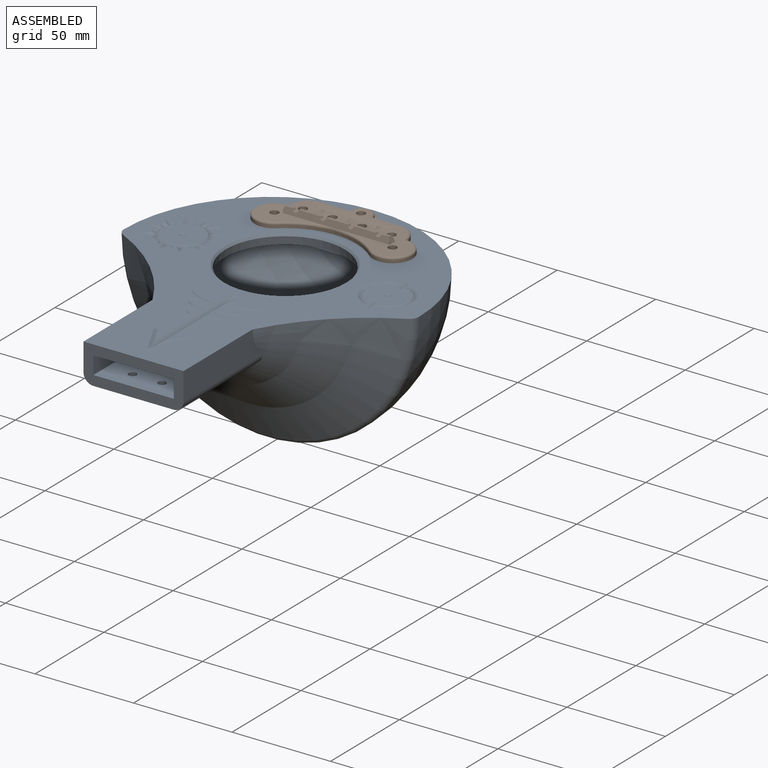
[diagram: assembled view]
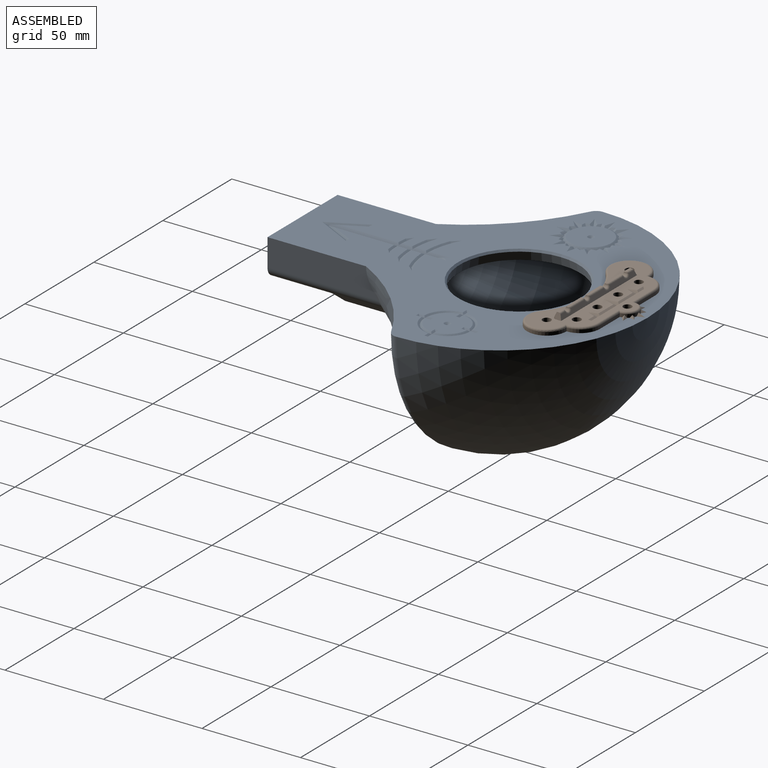
[diagram: assembled view, second angle]
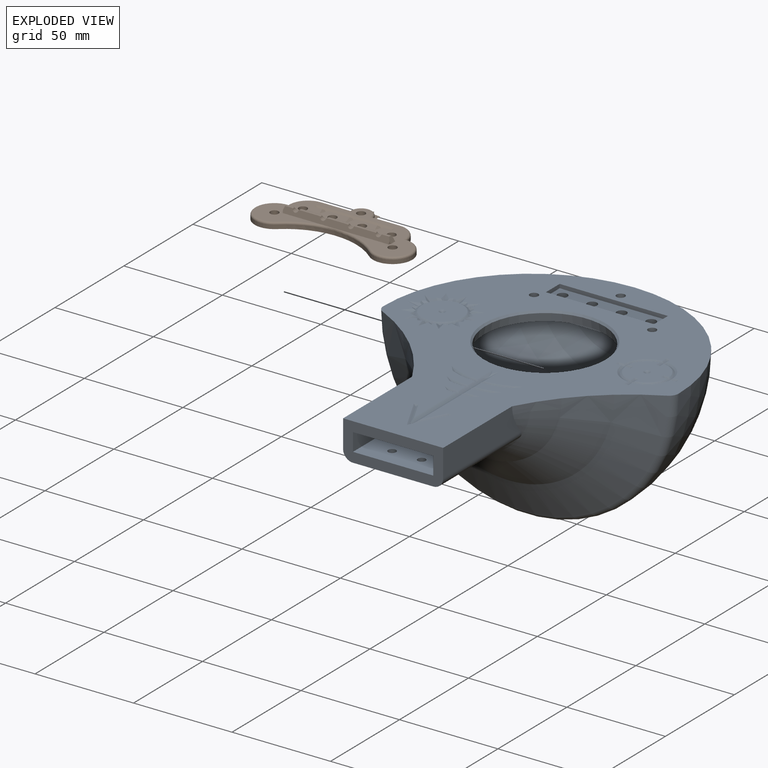
[diagram: exploded view]
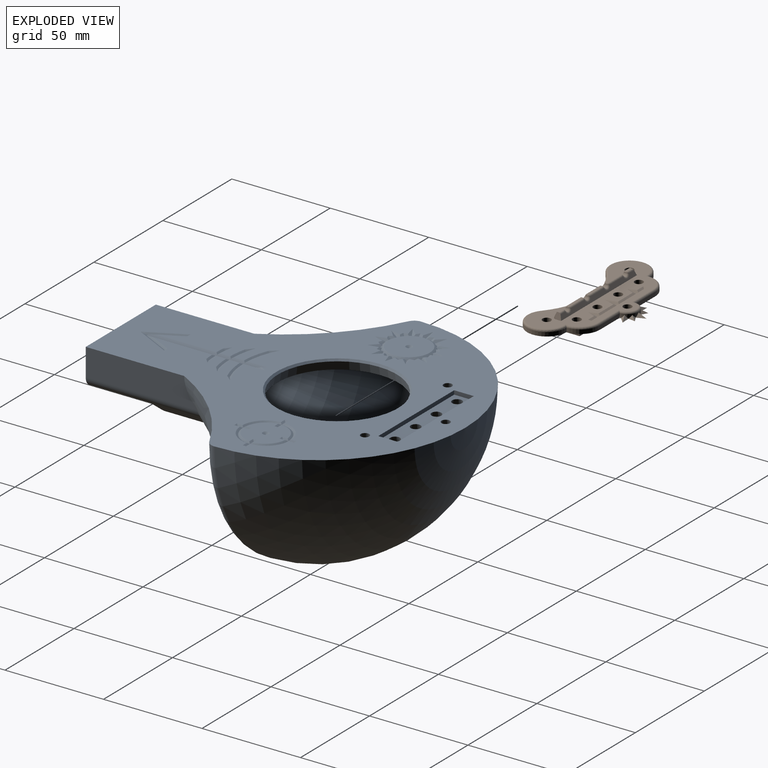
[diagram: exploded view, second angle]
ASSEMBLY  parts=2 mates=3
PART A: 268 faces, bbox 261.5x176.5x131 mm
  f0: plane 16.04x6.18mm, normal (0,-0.71,0.71), area 103.3mm2, adj f1,f40,f260,f261
  f1: plane 43.5x40.8mm, normal (0,0,1), area 1219mm2, adj f0,f47,f48,f49,f253,f254,f255,f258
  f2: plane 50x40.8mm, normal (0,0,-1), area 2002.3mm2, adj f39,f42,f44,f47,f253,f254,f255
  f3: plane 175x150mm, normal (0,0,-1), area 10922.3mm2, adj f38,f40,f41,f45,f46,f47,f51,f52
  f4: cone r=2.12mm half-angle=10deg, axis (0,0,1), area 52.5mm2, adj f26,f27,f28,f29,f30,f31,f75,f76
  f5: cone r=2.12mm half-angle=10deg, axis (0,0,1), area 52.5mm2, adj f20,f21,f22,f23,f24,f25,f81,f82
  f6: cone r=2.12mm half-angle=10deg, axis (0,0,1), area 52.5mm2, adj f14,f15,f16,f17,f18,f19,f87,f88
  f7: cone r=2.12mm half-angle=10deg, axis (0,0,1), area 52.5mm2, adj f8,f9,f10,f11,f12,f13,f93,f94
  f8: plane 1.44x0.83mm, normal (0,0,1), area 0.3mm2, adj f7,f123,f132
  f9: plane 1.66x0.48mm, normal (0,0,1), area 0.3mm2, adj f7,f127,f132
  f10: plane 1.44x0.83mm, normal (0,0,1), area 0.3mm2, adj f7,f126,f127
  f11: plane 1.44x0.83mm, normal (0,0,1), area 0.3mm2, adj f7,f125,f126
  f12: plane 1.66x0.48mm, normal (0,0,1), area 0.3mm2, adj f7,f124,f125
  f13: plane 1.44x0.83mm, normal (0,0,1), area 0.3mm2, adj f7,f123,f124
  f14: plane 1.66x0.48mm, normal (0,0,1), area 0.3mm2, adj f6,f118,f131
  f15: plane 1.44x0.83mm, normal (0,0,1), area 0.3mm2, adj f6,f122,f131
  f16: plane 1.44x0.83mm, normal (0,0,1), area 0.3mm2, adj f6,f121,f122
  f17: plane 1.66x0.48mm, normal (0,0,1), area 0.3mm2, adj f6,f120,f121
  f18: plane 1.44x0.83mm, normal (0,0,1), area 0.3mm2, adj f6,f119,f120
  f19: plane 1.44x0.83mm, normal (0,0,1), area 0.3mm2, adj f6,f118,f119
  f20: plane 1.66x0.48mm, normal (0,0,1), area 0.3mm2, adj f5,f113,f130
  f21: plane 1.44x0.83mm, normal (0,0,1), area 0.3mm2, adj f5,f117,f130
  f22: plane 1.44x0.83mm, normal (0,0,1), area 0.3mm2, adj f5,f116,f117
  f23: plane 1.66x0.48mm, normal (0,0,1), area 0.3mm2, adj f5,f115,f116
  f24: plane 1.44x0.83mm, normal (0,0,1), area 0.3mm2, adj f5,f114,f115
  f25: plane 1.44x0.83mm, normal (0,0,1), area 0.3mm2, adj f5,f113,f114
  f26: plane 1.66x0.48mm, normal (0,0,1), area 0.3mm2, adj f4,f108,f129
  f27: plane 1.44x0.83mm, normal (0,0,1), area 0.3mm2, adj f4,f112,f129
  f28: plane 1.44x0.83mm, normal (0,0,1), area 0.3mm2, adj f4,f111,f112
  f29: plane 1.66x0.48mm, normal (0,0,1), area 0.3mm2, adj f4,f110,f111
  f30: plane 1.44x0.83mm, normal (0,0,1), area 0.3mm2, adj f4,f109,f110
  f31: plane 1.44x0.83mm, normal (0,0,1), area 0.3mm2, adj f4,f108,f109
  f32: plane 1.44x0.83mm, normal (0,0,1), area 0.3mm2, adj f51,f103,f128
  f33: plane 1.66x0.48mm, normal (0,0,1), area 0.3mm2, adj f51,f107,f128
  f34: plane 1.44x0.83mm, normal (0,0,1), area 0.3mm2, adj f51,f106,f107
  f35: plane 1.44x0.83mm, normal (0,0,1), area 0.3mm2, adj f51,f105,f106
  f36: plane 1.66x0.48mm, normal (0,0,1), area 0.3mm2, adj f51,f104,f105
  f37: plane 1.44x0.83mm, normal (0,0,1), area 0.3mm2, adj f51,f103,f104
  f38: sphere r=75mm, area 17671.5mm2, adj f3,f41
  f39: plane 40.8x9.05mm, normal (0,-1,0), area 369.2mm2, adj f2,f42,f43,f44
  f40: torus R=120.57mm, axis (0,1,0), area 9420.4mm2, adj f0,f3,f41,f45,f46,f48,f49,f256
  f41: torus R=70mm, axis (0,1,0), area 1287.2mm2, adj f3,f38,f40
  f42: plane 50x9.05mm, normal (-1,0,0), area 452.5mm2, adj f2,f39,f43,f47
  f43: plane 50x40.8mm, normal (0,0,1), area 2040mm2, adj f39,f42,f44,f47
  f44: plane 50x9.05mm, normal (1,0,0), area 452.5mm2, adj f2,f39,f43,f47
  f45: plane 56.26x14.07mm, normal (1,0,0), area 733.5mm2, adj f3,f40,f47,f48
  f46: plane 56.26x14.07mm, normal (-1,0,0), area 733.5mm2, adj f3,f40,f47,f49
  f47: plane 50.8x19.05mm, normal (0,-1,0), area 587.8mm2, adj f1,f2,f3,f42,f43,f44,f45,f46
  f48: cylinder r=5mm len=57.42mm, axis (0,1,0), area 440.8mm2, adj f1,f40,f45,f47,f258,f262
  f49: cylinder r=5mm len=57.42mm, axis (0,-1,0), area 440.8mm2, adj f1,f40,f46,f47,f259,f263
  f50: plane 139.53x111.7mm, normal (0,0,1), area 7098.3mm2, adj f52,f53,f54,f58,f59,f60,f61,f62
  f51: cone r=2.12mm half-angle=10deg, axis (0,0,1), area 81.9mm2, adj f3,f32,f33,f34,f35,f36,f37,f69
  f52: cone r=2.12mm half-angle=10deg, axis (0,0,1), area 81.9mm2, adj f3,f50
  f53: cone r=30mm half-angle=10deg, axis (0,0,1), area 782mm2, adj f50,f134
  f54: cone r=2.12mm half-angle=10deg, axis (0,0,1), area 81.9mm2, adj f3,f50
  f55: plane 2.18x2.09mm, normal (0,0,1), area 2.2mm2, adj f56,f63,f64
  f56: cylinder r=25.4mm len=33.6mm, axis (0,-1,0), area 78.3mm2, adj f55,f57,f63,f64
  f57: plane 2.18x2.09mm, normal (0,0,1), area 2.2mm2, adj f56,f63,f64
  f58: torus R=64.93mm, axis (0,1,0), area 1165mm2, adj f50,f64,f65
  f59: plane 3.75x1.59mm, normal (-1,0,0), area 2.6mm2, adj f50,f63,f64
  f60: plane 41.93x16.55mm, normal (0,1,0), area 516.1mm2, adj f50,f61
  f61: torus R=109.89mm, axis (0,1,0), area 291.1mm2, adj f50,f60,f63
  f62: plane 3.75x1.58mm, normal (1,0,0), area 2.6mm2, adj f50,f63,f64
  f63: plane 50.8x20.4mm, normal (0,1,0), area 131.5mm2, adj f50,f55,f56,f57,f59,f61,f62,f64
  f64: torus R=120.57mm, axis (0,1,0), area 7441.4mm2, adj f50,f55,f56,f57,f58,f59,f62,f63
  f65: sphere r=70mm, area 13574.6mm2, adj f50,f58,f66,f67,f68
  f66: cylinder r=6.57mm len=6.3mm, axis (0,0,-1), area 26.2mm2, adj f50,f65,f68,f102
  f67: cylinder r=6.57mm len=6.3mm, axis (0,0,-1), area 26.2mm2, adj f50,f65,f68,f133
  f68: plane 61.74x22.79mm, normal (0,0,1), area 899.7mm2, adj f65,f66,f67,f99,f100,f101,f102,f103
  f69: plane 1.26x0.73mm, normal (0,0,-1), area 0.1mm2, adj f51,f104
  f70: plane 1.26x0.73mm, normal (0,0,-1), area 0.1mm2, adj f51,f105
  f71: plane 1.45x0.09mm, normal (0,0,-1), area 0.1mm2, adj f51,f106
  f72: plane 1.26x0.73mm, normal (0,0,-1), area 0.1mm2, adj f51,f107
  f73: plane 1.26x0.73mm, normal (0,0,-1), area 0.1mm2, adj f51,f128
  f74: plane 1.45x0.09mm, normal (0,0,-1), area 0.1mm2, adj f51,f103
  f75: plane 1.26x0.73mm, normal (0,0,-1), area 0.1mm2, adj f4,f110
  f76: plane 1.26x0.73mm, normal (0,0,-1), area 0.1mm2, adj f4,f111
  f77: plane 1.45x0.09mm, normal (0,0,-1), area 0.1mm2, adj f4,f112
  f78: plane 1.26x0.73mm, normal (0,0,-1), area 0.1mm2, adj f4,f129
  f79: plane 1.26x0.73mm, normal (0,0,-1), area 0.1mm2, adj f4,f108
  f80: plane 1.45x0.09mm, normal (0,0,-1), area 0.1mm2, adj f4,f109
  f81: plane 1.26x0.73mm, normal (0,0,-1), area 0.1mm2, adj f5,f115
  f82: plane 1.26x0.73mm, normal (0,0,-1), area 0.1mm2, adj f5,f116
  f83: plane 1.45x0.09mm, normal (0,0,-1), area 0.1mm2, adj f5,f117
  f84: plane 1.26x0.73mm, normal (0,0,-1), area 0.1mm2, adj f5,f130
  f85: plane 1.26x0.73mm, normal (0,0,-1), area 0.1mm2, adj f5,f113
  f86: plane 1.45x0.09mm, normal (0,0,-1), area 0.1mm2, adj f5,f114
  f87: plane 1.26x0.73mm, normal (0,0,-1), area 0.1mm2, adj f6,f120
  f88: plane 1.26x0.73mm, normal (0,0,-1), area 0.1mm2, adj f6,f121
  f89: plane 1.45x0.09mm, normal (0,0,-1), area 0.1mm2, adj f6,f122
  f90: plane 1.26x0.73mm, normal (0,0,-1), area 0.1mm2, adj f6,f131
  f91: plane 1.26x0.73mm, normal (0,0,-1), area 0.1mm2, adj f6,f118
  f92: plane 1.45x0.09mm, normal (0,0,-1), area 0.1mm2, adj f6,f119
  f93: plane 1.26x0.73mm, normal (0,0,-1), area 0.1mm2, adj f7,f127
  f94: plane 1.26x0.73mm, normal (0,0,-1), area 0.1mm2, adj f7,f132
  f95: plane 1.45x0.09mm, normal (0,0,-1), area 0.1mm2, adj f7,f123
  f96: plane 1.26x0.73mm, normal (0,0,-1), area 0.1mm2, adj f7,f124
  f97: plane 1.26x0.73mm, normal (0,0,-1), area 0.1mm2, adj f7,f125
  f98: plane 1.45x0.09mm, normal (0,0,-1), area 0.1mm2, adj f7,f126
  f99: cylinder r=8.37mm len=16.74mm, axis (0,0,-1), area 105.2mm2, adj f50,f68,f100,f133
  f100: plane 45x4mm, normal (0,-1,0), area 180mm2, adj f50,f68,f99,f101
  f101: cylinder r=8.37mm len=16.74mm, axis (0,0,-1), area 105.2mm2, adj f50,f68,f100,f102
  f102: plane 16.14x4mm, normal (0,1,0), area 64.5mm2, adj f50,f66,f68,f101
  f103: plane 4x3.37mm, normal (1,0,0), area 13.5mm2, adj f32,f37,f68,f74,f104,f128
  f104: plane 4x2.92mm, normal (0.5,-0.87,0), area 13.5mm2, adj f36,f37,f68,f69,f103,f105
  f105: plane 4x2.92mm, normal (-0.5,-0.87,0), area 13.5mm2, adj f35,f36,f68,f70,f104,f106
  f106: plane 4x3.37mm, normal (-1,0,0), area 13.5mm2, adj f34,f35,f68,f71,f105,f107
  f107: plane 4x2.92mm, normal (-0.5,0.87,0), area 13.5mm2, adj f33,f34,f68,f72,f106,f128
  f108: plane 4x2.92mm, normal (0.5,0.87,0), area 13.5mm2, adj f26,f31,f68,f79,f109,f129
  f109: plane 4x3.37mm, normal (1,0,0), area 13.5mm2, adj f30,f31,f68,f80,f108,f110
  f110: plane 4x2.92mm, normal (0.5,-0.87,0), area 13.5mm2, adj f29,f30,f68,f75,f109,f111
  f111: plane 4x2.92mm, normal (-0.5,-0.87,0), area 13.5mm2, adj f28,f29,f68,f76,f110,f112
  f112: plane 4x3.37mm, normal (-1,0,0), area 13.5mm2, adj f27,f28,f68,f77,f111,f129
  f113: plane 4x2.92mm, normal (0.5,0.87,0), area 13.5mm2, adj f20,f25,f68,f85,f114,f130
  f114: plane 4x3.37mm, normal (1,0,0), area 13.5mm2, adj f24,f25,f68,f86,f113,f115
  f115: plane 4x2.92mm, normal (0.5,-0.87,0), area 13.5mm2, adj f23,f24,f68,f81,f114,f116
  f116: plane 4x2.92mm, normal (-0.5,-0.87,0), area 13.5mm2, adj f22,f23,f68,f82,f115,f117
  f117: plane 4x3.37mm, normal (-1,0,0), area 13.5mm2, adj f21,f22,f68,f83,f116,f130
  f118: plane 4x2.92mm, normal (0.5,0.87,0), area 13.5mm2, adj f14,f19,f68,f91,f119,f131
  f119: plane 4x3.37mm, normal (1,0,0), area 13.5mm2, adj f18,f19,f68,f92,f118,f120
  f120: plane 4x2.92mm, normal (0.5,-0.87,0), area 13.5mm2, adj f17,f18,f68,f87,f119,f121
  f121: plane 4x2.92mm, normal (-0.5,-0.87,0), area 13.5mm2, adj f16,f17,f68,f88,f120,f122
  f122: plane 4x3.37mm, normal (-1,0,0), area 13.5mm2, adj f15,f16,f68,f89,f121,f131
  f123: plane 4x3.37mm, normal (-1,0,0), area 13.5mm2, adj f8,f13,f68,f95,f124,f132
  f124: plane 4x2.92mm, normal (-0.5,0.87,0), area 13.5mm2, adj f12,f13,f68,f96,f123,f125
  f125: plane 4x2.92mm, normal (0.5,0.87,0), area 13.5mm2, adj f11,f12,f68,f97,f124,f126
  f126: plane 4x3.37mm, normal (1,0,0), area 13.5mm2, adj f10,f11,f68,f98,f125,f127
  f127: plane 4x2.92mm, normal (0.5,-0.87,0), area 13.5mm2, adj f9,f10,f68,f93,f126,f132
  f128: plane 4x2.92mm, normal (0.5,0.87,0), area 13.5mm2, adj f32,f33,f68,f73,f103,f107
  f129: plane 4x2.92mm, normal (-0.5,0.87,0), area 13.5mm2, adj f26,f27,f68,f78,f108,f112
  f130: plane 4x2.92mm, normal (-0.5,0.87,0), area 13.5mm2, adj f20,f21,f68,f84,f113,f117
  f131: plane 4x2.92mm, normal (-0.5,0.87,0), area 13.5mm2, adj f14,f15,f68,f90,f118,f122
  f132: plane 4x2.92mm, normal (-0.5,-0.87,0), area 13.5mm2, adj f8,f9,f68,f94,f123,f127
  f133: plane 16.14x4mm, normal (0,1,0), area 64.5mm2, adj f50,f67,f68,f99
  f134: cone r=30.17mm half-angle=40deg, axis (0,0,-1), area 247.1mm2, adj f3,f53
  f135: plane 55x10mm, normal (0,0,-1), area 472.9mm2, adj f4,f5,f6,f7,f136,f137,f138,f139
  f136: plane 55x2mm, normal (0,-1,0), area 110mm2, adj f3,f135,f137,f139
  f137: plane 10x2mm, normal (-1,0,0), area 20mm2, adj f3,f135,f136,f138
  f138: plane 55x2mm, normal (0,1,0), area 110mm2, adj f3,f135,f137,f139
  f139: plane 10x2mm, normal (1,0,0), area 20mm2, adj f3,f135,f136,f138
  f140: cone r=10.5mm half-angle=60deg, axis (0,0,1), area 93mm2, adj f141,f142,f143,f144,f145,f146,f147,f148
  f141: plane 3.17x1.58mm, normal (-0.06,-0.5,-0.87), area 2.9mm2, adj f3,f140,f142,f188
  f142: plane 3.17x1.58mm, normal (-0.5,-0.06,-0.87), area 2.9mm2, adj f3,f140,f141,f143
  f143: plane 5.97x2.73mm, normal (0.11,-0.49,-0.87), area 5.9mm2, adj f3,f140,f142,f144
  f144: plane 4.88x4.09mm, normal (-0.37,0.34,-0.87), area 5.9mm2, adj f3,f140,f143,f145
  f145: plane 2.99x1.79mm, normal (-0.3,-0.4,-0.87), area 2.9mm2, adj f3,f140,f144,f146
  f146: plane 2.52x2.02mm, normal (-0.46,0.2,-0.87), area 2.9mm2, adj f3,f140,f145,f147
  f147: plane 6.26x1.63mm, normal (-0.15,-0.48,-0.87), area 5.9mm2, adj f3,f140,f146,f148
  f148: plane 6.26x1.63mm, normal (-0.15,0.48,-0.87), area 5.9mm2, adj f3,f140,f147,f149
  f149: plane 2.52x2.02mm, normal (-0.46,-0.2,-0.87), area 2.9mm2, adj f3,f140,f148,f150
  f150: plane 2.99x1.79mm, normal (-0.3,0.4,-0.87), area 2.9mm2, adj f3,f140,f149,f151
  f151: plane 4.88x4.09mm, normal (-0.37,-0.34,-0.87), area 5.9mm2, adj f3,f140,f150,f152
  f152: plane 5.97x2.73mm, normal (0.11,0.49,-0.87), area 5.9mm2, adj f3,f140,f151,f153
  f153: plane 3.17x1.58mm, normal (-0.5,0.06,-0.87), area 2.9mm2, adj f3,f140,f152,f154
  f154: plane 3.17x1.58mm, normal (-0.06,0.5,-0.87), area 2.9mm2, adj f3,f140,f153,f155
  f155: plane 5.97x2.73mm, normal (-0.49,-0.11,-0.87), area 5.9mm2, adj f3,f140,f154,f156
  f156: plane 4.88x4.09mm, normal (0.34,0.37,-0.87), area 5.9mm2, adj f3,f140,f155,f157
  f157: plane 2.99x1.79mm, normal (-0.4,0.3,-0.87), area 2.9mm2, adj f3,f140,f156,f158
  f158: plane 2.52x2.02mm, normal (0.2,0.46,-0.87), area 2.9mm2, adj f3,f140,f157,f159
  f159: plane 6.26x1.63mm, normal (-0.48,0.15,-0.87), area 5.9mm2, adj f3,f140,f158,f160
  f160: plane 6.26x1.63mm, normal (0.48,0.15,-0.87), area 5.9mm2, adj f3,f140,f159,f161
  f161: plane 2.52x2.02mm, normal (-0.2,0.46,-0.87), area 2.9mm2, adj f3,f140,f160,f162
  f162: plane 2.99x1.79mm, normal (0.4,0.3,-0.87), area 2.9mm2, adj f3,f140,f161,f163
  f163: plane 4.88x4.09mm, normal (-0.34,0.37,-0.87), area 5.9mm2, adj f3,f140,f162,f164
  f164: plane 5.97x2.73mm, normal (0.49,-0.11,-0.87), area 5.9mm2, adj f3,f140,f163,f165
  f165: plane 3.17x1.58mm, normal (0.06,0.5,-0.87), area 2.9mm2, adj f3,f140,f164,f166
  f166: plane 3.17x1.58mm, normal (0.5,0.06,-0.87), area 2.9mm2, adj f3,f140,f165,f167
  f167: plane 5.97x2.73mm, normal (-0.11,0.49,-0.87), area 5.9mm2, adj f3,f140,f166,f168
  f168: plane 4.88x4.09mm, normal (0.37,-0.34,-0.87), area 5.9mm2, adj f3,f140,f167,f169
  f169: plane 2.99x1.79mm, normal (0.3,0.4,-0.87), area 2.9mm2, adj f3,f140,f168,f170
  f170: plane 2.52x2.02mm, normal (0.46,-0.2,-0.87), area 2.9mm2, adj f3,f140,f169,f171
  f171: plane 6.26x1.63mm, normal (0.15,0.48,-0.87), area 5.9mm2, adj f3,f140,f170,f172
  f172: plane 6.26x1.63mm, normal (0.15,-0.48,-0.87), area 5.9mm2, adj f3,f140,f171,f173
  f173: plane 2.52x2.02mm, normal (0.46,0.2,-0.87), area 2.9mm2, adj f3,f140,f172,f174
  f174: plane 2.99x1.79mm, normal (0.3,-0.4,-0.87), area 2.9mm2, adj f3,f140,f173,f175
  f175: plane 4.88x4.09mm, normal (0.37,0.34,-0.87), area 5.9mm2, adj f3,f140,f174,f176
  f176: plane 5.97x2.73mm, normal (-0.11,-0.49,-0.87), area 5.9mm2, adj f3,f140,f175,f177
  f177: plane 3.17x1.58mm, normal (0.5,-0.06,-0.87), area 2.9mm2, adj f3,f140,f176,f178
  f178: plane 3.17x1.58mm, normal (0.06,-0.5,-0.87), area 2.9mm2, adj f3,f140,f177,f179
  f179: plane 5.97x2.73mm, normal (0.49,0.11,-0.87), area 5.9mm2, adj f3,f140,f178,f180
  f180: plane 4.88x4.09mm, normal (-0.34,-0.37,-0.87), area 5.9mm2, adj f3,f140,f179,f181
  f181: plane 2.99x1.79mm, normal (0.4,-0.3,-0.87), area 2.9mm2, adj f3,f140,f180,f182
  f182: plane 2.52x2.02mm, normal (-0.2,-0.46,-0.87), area 2.9mm2, adj f3,f140,f181,f183
  f183: plane 6.26x1.63mm, normal (0.48,-0.15,-0.87), area 5.9mm2, adj f3,f140,f182,f184
  f184: plane 6.26x1.63mm, normal (-0.48,-0.15,-0.87), area 5.9mm2, adj f3,f140,f183,f185
  f185: plane 2.52x2.02mm, normal (0.2,-0.46,-0.87), area 2.9mm2, adj f3,f140,f184,f186
  f186: plane 2.99x1.79mm, normal (-0.4,-0.3,-0.87), area 2.9mm2, adj f3,f140,f185,f187
  f187: plane 4.88x4.09mm, normal (0.34,-0.37,-0.87), area 5.9mm2, adj f3,f140,f186,f188
  f188: plane 5.97x2.73mm, normal (-0.49,0.11,-0.87), area 5.9mm2, adj f3,f140,f141,f187
  f189: cone r=12.5mm half-angle=60deg, axis (0,0,-1), area 20.6mm2, adj f3,f194,f211,f212
  f190: cone r=12.5mm half-angle=60deg, axis (0,0,-1), area 20.6mm2, adj f3,f193,f214,f215
  f191: cone r=12.5mm half-angle=60deg, axis (0,0,-1), area 20.6mm2, adj f3,f196,f208,f209
  f192: cone r=12.5mm half-angle=60deg, axis (0,0,-1), area 20.6mm2, adj f3,f195,f217,f218
  f193: cone r=10.5mm half-angle=60deg, axis (0,0,1), area 18.8mm2, adj f190,f202,f203,f250
  f194: cone r=10.5mm half-angle=60deg, axis (0,0,1), area 18.8mm2, adj f189,f205,f206,f250
  f195: cone r=10.5mm half-angle=60deg, axis (0,0,1), area 18.8mm2, adj f192,f199,f200,f250
  f196: cone r=10.5mm half-angle=60deg, axis (0,0,1), area 18.8mm2, adj f191,f197,f220,f250
  f197: plane 3.84x1.04mm, normal (-0.5,0,-0.87), area 3.2mm2, adj f196,f198,f199,f250
  f198: plane 2x1mm, normal (0,0.5,-0.87), area 1.2mm2, adj f197,f199,f250
  f199: plane 3.84x1.04mm, normal (0.5,0,-0.87), area 3.2mm2, adj f195,f197,f198,f250
  f200: plane 3.84x1.04mm, normal (0,-0.5,-0.87), area 3.2mm2, adj f195,f201,f202,f250
  f201: plane 2x1mm, normal (-0.5,0,-0.87), area 1.2mm2, adj f200,f202,f250
  f202: plane 3.84x1.04mm, normal (0,0.5,-0.87), area 3.2mm2, adj f193,f200,f201,f250
  f203: plane 3.84x1.04mm, normal (0.5,0,-0.87), area 3.2mm2, adj f193,f204,f205,f250
  f204: plane 2x1mm, normal (0,-0.5,-0.87), area 1.2mm2, adj f203,f205,f250
  f205: plane 3.84x1.04mm, normal (-0.5,0,-0.87), area 3.2mm2, adj f194,f203,f204,f250
  f206: plane 3.84x1.04mm, normal (0,0.5,-0.87), area 3.2mm2, adj f194,f207,f220,f250
  f207: plane 2x1mm, normal (0.5,0,-0.87), area 1.2mm2, adj f206,f220,f250
  f208: plane 3.78x1.03mm, normal (-0.5,0,-0.87), area 3.2mm2, adj f3,f191,f218,f219
  f209: plane 3.78x1.03mm, normal (0,-0.5,-0.87), area 3.2mm2, adj f3,f191,f210,f211
  f210: plane 2x1mm, normal (-0.5,0,-0.87), area 1.2mm2, adj f3,f209,f211
  f211: plane 3.78x1.03mm, normal (0,0.5,-0.87), area 3.2mm2, adj f3,f189,f209,f210
  f212: plane 3.78x1.03mm, normal (-0.5,0,-0.87), area 3.2mm2, adj f3,f189,f213,f214
  f213: plane 2x1mm, normal (0,0.5,-0.87), area 1.2mm2, adj f3,f212,f214
  f214: plane 3.78x1.03mm, normal (0.5,0,-0.87), area 3.2mm2, adj f3,f190,f212,f213
  f215: plane 3.78x1.03mm, normal (0,0.5,-0.87), area 3.2mm2, adj f3,f190,f216,f217
  f216: plane 2x1mm, normal (0.5,0,-0.87), area 1.2mm2, adj f3,f215,f217
  f217: plane 3.78x1.03mm, normal (0,-0.5,-0.87), area 3.2mm2, adj f3,f192,f215,f216
  f218: plane 3.78x1.03mm, normal (0.5,0,-0.87), area 3.2mm2, adj f3,f192,f208,f219
  f219: plane 2x1mm, normal (0,-0.5,-0.87), area 1.2mm2, adj f3,f208,f218
  f220: plane 3.84x1.04mm, normal (0,-0.5,-0.87), area 3.2mm2, adj f196,f206,f207,f250
  f221: plane 18.8x9.65mm, normal (-0.44,0.23,-0.87), area 22.8mm2, adj f3,f223,f235,f245,f246
  f222: plane 15.44x7.41mm, normal (-0.44,-0.23,-0.87), area 16.7mm2, adj f3,f226,f246,f247
  f223: plane 15.44x7.41mm, normal (0.44,-0.23,-0.87), area 16.7mm2, adj f3,f221,f235,f245
  f224: plane 3.13x2.46mm, normal (0.34,0.37,-0.87), area 2mm2, adj f3,f225,f248
  f225: cone r=50.52mm half-angle=60deg, axis (0,0,1), area 7.4mm2, adj f3,f224,f226,f248
  f226: plane 60.92x1.61mm, normal (0.5,0,-0.87), area 101.1mm2, adj f3,f222,f225,f227,f229,f230,f232,f233
  f227: cone r=45.53mm half-angle=60deg, axis (0,0,-1), area 10.7mm2, adj f3,f226,f228,f229
  f228: plane 4.05x3.16mm, normal (0.33,0.38,-0.87), area 2.6mm2, adj f3,f227,f229
  f229: cone r=43.53mm half-angle=60deg, axis (0,0,1), area 12.8mm2, adj f3,f226,f227,f228
  f230: cone r=38.53mm half-angle=60deg, axis (0,0,-1), area 16.1mm2, adj f3,f226,f231,f232
  f231: plane 3.79x3.72mm, normal (0.39,0.31,-0.87), area 2.6mm2, adj f3,f230,f232
  f232: cone r=36.53mm half-angle=60deg, axis (0,0,1), area 18.1mm2, adj f3,f226,f230,f231
  f233: plane 5.97x1.6mm, normal (-0.43,-0.25,-0.87), area 3mm2, adj f3,f226,f234
  f234: plane 5.97x1.6mm, normal (0.43,-0.25,-0.87), area 3mm2, adj f3,f233,f235
  f235: plane 60.92x1.61mm, normal (-0.5,0,-0.87), area 101.1mm2, adj f3,f221,f223,f226,f234,f236,f238,f239
  f236: cone r=36.53mm half-angle=60deg, axis (0,0,1), area 18.1mm2, adj f3,f235,f237,f238
  f237: plane 3.79x3.72mm, normal (-0.39,0.31,-0.87), area 2.6mm2, adj f3,f236,f238
  f238: cone r=38.53mm half-angle=60deg, axis (0,0,-1), area 16.1mm2, adj f3,f235,f236,f237
  f239: cone r=43.53mm half-angle=60deg, axis (0,0,1), area 12.8mm2, adj f3,f235,f240,f241
  f240: plane 4.05x3.16mm, normal (-0.33,0.38,-0.87), area 2.6mm2, adj f3,f239,f241
  f241: cone r=45.53mm half-angle=60deg, axis (0,0,-1), area 10.7mm2, adj f3,f235,f239,f240
  f242: cone r=50.52mm half-angle=60deg, axis (0,0,1), area 7.4mm2, adj f3,f235,f243,f244
  f243: plane 3.13x2.46mm, normal (-0.34,0.37,-0.87), area 2mm2, adj f3,f242,f244
  f244: cone r=52.52mm half-angle=60deg, axis (0,0,-1), area 5.8mm2, adj f3,f235,f242,f243
  f245: plane 2.25x1mm, normal (0,-0.5,-0.87), area 1.3mm2, adj f3,f221,f223
  f246: plane 18.8x9.65mm, normal (0.44,0.23,-0.87), area 22.8mm2, adj f3,f221,f222,f226,f247
  f247: plane 2.25x1mm, normal (0,-0.5,-0.87), area 1.3mm2, adj f3,f222,f246
  f248: cone r=52.52mm half-angle=60deg, axis (0,0,-1), area 5.8mm2, adj f3,f224,f225,f226
  f249: plane 21x21mm, normal (0,0,-1), area 338.3mm2, adj f140,f252
  f250: plane 20.9x20.9mm, normal (0,0,-1), area 316.1mm2, adj f193,f194,f195,f196,f197,f198,f199,f200
  f251: cone r=1.6mm half-angle=60deg, axis (0,0,-1), area 9.3mm2, adj f250
  f252: cone r=1.6mm half-angle=60deg, axis (0,0,-1), area 9.3mm2, adj f249
  f253: cylinder r=2mm len=5mm, axis (0,0,1), area 62.8mm2, adj f1,f2
  f254: cylinder r=2mm len=5mm, axis (0,0,1), area 62.8mm2, adj f1,f2
  f255: cylinder r=2mm len=5mm, axis (0,0,1), area 62.8mm2, adj f1,f2
  f256: plane 22.33x1.56mm, normal (0,0,1), area 33.1mm2, adj f40,f259,f266,f267
  f257: plane 22.33x1.56mm, normal (0,0,1), area 33.1mm2, adj f40,f258,f264,f265
  f258: plane 16.33x6.48mm, normal (0,-0.71,0.71), area 83.8mm2, adj f1,f48,f257,f261,f262,f264,f265
  f259: plane 16.33x6.48mm, normal (0,-0.71,0.71), area 83.8mm2, adj f1,f49,f256,f260,f263,f266,f267
  f260: plane 24.01x5.03mm, normal (0.71,0,0.71), area 119.7mm2, adj f0,f1,f40,f259,f267
  f261: plane 24.01x5.03mm, normal (-0.71,0,0.71), area 119.7mm2, adj f0,f1,f40,f258,f264
  f262: plane 28.75x5mm, normal (0.72,0,0.7), area 177.3mm2, adj f40,f48,f258,f265
  f263: plane 28.75x5mm, normal (-0.72,0,0.7), area 177.3mm2, adj f40,f49,f259,f266
  f264: cylinder r=3mm len=22.16mm, axis (0,-1,0), area 50.6mm2, adj f40,f257,f258,f261
  f265: cylinder r=3mm len=23.76mm, axis (0,-1,0), area 58.2mm2, adj f40,f257,f258,f262
  f266: cylinder r=3mm len=23.76mm, axis (0,1,0), area 58.2mm2, adj f40,f256,f259,f263
  f267: cylinder r=3mm len=22.16mm, axis (0,1,0), area 50.6mm2, adj f40,f256,f259,f260
PART B: 105 faces, bbox 82.5x41.3x8.4 mm
  f0: plane 14.38x2mm, normal (0,1,0), area 28.5mm2, adj f1,f11,f23,f42,f91
  f1: cylinder r=5.62mm len=11.25mm, axis (0,0,-1), area 21.3mm2, adj f0,f12,f40,f80,f81,f82,f83,f84
  f2: plane 54.97x3.82mm, normal (0,-0.94,0.34), area 155.9mm2, adj f3,f4,f5,f6,f7,f8,f9,f30
  f3: plane 3.68x3.11mm, normal (0.94,0,0.34), area 8.6mm2, adj f2,f8,f9,f29,f36,f55
  f4: plane 10.13x1.12mm, normal (0,0,1), area 11.3mm2, adj f2,f47,f50,f71,f73,f75
  f5: plane 3.47x1.12mm, normal (0,0,1), area 3.9mm2, adj f2,f30,f48,f77,f79
  f6: plane 10.13x1.12mm, normal (0,0,1), area 11.3mm2, adj f2,f49,f52,f65,f67,f69
  f7: plane 10.13x1.12mm, normal (0,0,1), area 11.3mm2, adj f2,f51,f54,f59,f61,f63
  f8: plane 3.47x1.12mm, normal (0,0,1), area 3.9mm2, adj f2,f3,f53,f55,f57
  f9: plane 78x33.63mm, normal (0,0,1), area 1098.9mm2, adj f2,f3,f15,f16,f17,f18,f19,f20
  f10: cylinder r=10mm len=20mm, axis (0,0,-1), area 77mm2, adj f11,f21,f23,f46
  f11: cylinder r=10mm len=10mm, axis (0,0,-1), area 31.4mm2, adj f0,f10,f23,f44
  f12: plane 14.38x2mm, normal (0,1,0), area 28.5mm2, adj f1,f13,f23,f38,f80
  f13: cylinder r=10mm len=10mm, axis (0,0,-1), area 31.4mm2, adj f12,f14,f23,f37
  f14: cylinder r=10mm len=20mm, axis (0,0,-1), area 77mm2, adj f13,f21,f23,f39
  f15: cylinder r=2.12mm len=4.25mm, axis (0,0,-1), area 40.1mm2, adj f9,f23
  f16: cylinder r=2.12mm len=4.25mm, axis (0,0,-1), area 40.1mm2, adj f9,f23
  f17: cylinder r=2.12mm len=4.6mm, axis (0,0,-1), area 61.4mm2, adj f9,f28
  f18: cylinder r=2.12mm len=4.6mm, axis (0,0,-1), area 61.4mm2, adj f9,f28
  f19: cylinder r=2.12mm len=4.6mm, axis (0,0,-1), area 61.4mm2, adj f9,f28
  f20: cylinder r=2.12mm len=4.6mm, axis (0,0,-1), area 61.4mm2, adj f9,f28
  f21: cylinder r=36.1mm len=46.98mm, axis (0,0,-1), area 102.3mm2, adj f10,f14,f23,f41,f43,f45
  f22: cylinder r=2.12mm len=4.25mm, axis (0,0,-1), area 40.1mm2, adj f9,f23
  f23: plane 80x39.63mm, normal (0,0,-1), area 1187.3mm2, adj f0,f10,f11,f12,f13,f14,f15,f16
  f24: plane 9.5x1.6mm, normal (1,0,0), area 15.2mm2, adj f23,f25,f27,f28
  f25: plane 54.5x1.6mm, normal (0,-1,0), area 87.2mm2, adj f23,f24,f26,f28
  f26: plane 9.5x1.6mm, normal (-1,0,0), area 15.2mm2, adj f23,f25,f27,f28
  f27: plane 54.5x1.6mm, normal (0,1,0), area 87.2mm2, adj f23,f24,f26,f28
  f28: plane 54.5x9.5mm, normal (0,0,-1), area 461mm2, adj f17,f18,f19,f20,f24,f25,f26,f27
  f29: plane 55x2.34mm, normal (0,0.94,0.34), area 113.9mm2, adj f3,f9,f30,f55,f58,f61,f64,f67
  f30: plane 3.68x3.11mm, normal (-0.94,0,0.34), area 8.6mm2, adj f2,f5,f9,f29,f35,f79
  f31: cylinder r=1.5mm len=2.9mm, axis (0,1,0), area 6.2mm2, adj f2,f53,f54,f58
  f32: cylinder r=1.5mm len=2.9mm, axis (0,1,0), area 6.2mm2, adj f2,f51,f52,f64
  f33: cylinder r=1.5mm len=2.9mm, axis (0,1,0), area 6.2mm2, adj f2,f49,f50,f70
  f34: cylinder r=1.5mm len=2.9mm, axis (0,1,0), area 6.2mm2, adj f2,f47,f48,f76
  f35: cylinder r=3.5mm len=1.16mm, axis (0,0,-1), area 0.7mm2, adj f2,f9,f30
  f36: cylinder r=3.5mm len=1.16mm, axis (0,0,-1), area 0.7mm2, adj f2,f3,f9
  f37: torus R=9mm, axis (0,0,1), area 24.7mm2, adj f9,f13,f38,f39
  f38: cylinder r=1mm len=15.48mm, axis (1,0,0), area 23.5mm2, adj f9,f12,f37,f40
  f39: torus R=9mm, axis (0,0,1), area 59.2mm2, adj f9,f14,f37,f41
  f40: torus R=4.62mm, axis (0,0,1), area 27.7mm2, adj f1,f9,f38,f42
  f41: torus R=37.1mm, axis (0,0,1), area 30.3mm2, adj f9,f21,f39,f43
  f42: cylinder r=1mm len=15.48mm, axis (1,0,0), area 23.5mm2, adj f0,f9,f40,f44
  f43: bspline ~15.08x1.2mm, area 15mm2, adj f2,f21,f41,f45
  f44: torus R=9mm, axis (0,0,1), area 24.7mm2, adj f9,f11,f42,f46
  f45: torus R=37.1mm, axis (0,0,1), area 30.3mm2, adj f9,f21,f43,f46
  f46: torus R=9mm, axis (0,0,1), area 59.2mm2, adj f9,f10,f44,f45
  f47: cylinder r=0.5mm len=1.12mm, axis (0,1,0), area 0.7mm2, adj f2,f4,f34,f75
  f48: cylinder r=0.5mm len=1.12mm, axis (0,1,0), area 0.7mm2, adj f2,f5,f34,f77
  f49: cylinder r=0.5mm len=1.12mm, axis (0,1,0), area 0.7mm2, adj f2,f6,f33,f69
  f50: cylinder r=0.5mm len=1.12mm, axis (0,1,0), area 0.7mm2, adj f2,f4,f33,f71
  f51: cylinder r=0.5mm len=1.12mm, axis (0,1,0), area 0.7mm2, adj f2,f7,f32,f63
  f52: cylinder r=0.5mm len=1.12mm, axis (0,1,0), area 0.7mm2, adj f2,f6,f32,f65
  f53: cylinder r=0.5mm len=1.12mm, axis (0,1,0), area 0.7mm2, adj f2,f8,f31,f57
  f54: cylinder r=0.5mm len=1.12mm, axis (0,1,0), area 0.7mm2, adj f2,f7,f31,f59
  f55: cylinder r=1mm len=3.69mm, axis (-1,0,0), area 4.2mm2, adj f3,f8,f29,f56
  f56: bspline ~1.12x0.83mm, area 0.3mm2, adj f55,f57,f58
  f57: bspline ~0.56x0.52mm, area 0.1mm2, adj f8,f53,f56,f58
  f58: bspline ~4.84x1.94mm, area 6.4mm2, adj f29,f31,f56,f57,f59,f60
  f59: bspline ~0.56x0.52mm, area 0.1mm2, adj f7,f54,f58,f60
  f60: bspline ~1.12x0.83mm, area 0.3mm2, adj f58,f59,f61
  f61: cylinder r=1mm len=10.09mm, axis (-1,0,0), area 11.9mm2, adj f7,f29,f60,f62
  f62: bspline ~1.12x0.83mm, area 0.3mm2, adj f61,f63,f64
  f63: bspline ~0.56x0.52mm, area 0.1mm2, adj f7,f51,f62,f64
  f64: bspline ~4.84x1.94mm, area 6.4mm2, adj f29,f32,f62,f63,f65,f66
  f65: bspline ~0.56x0.52mm, area 0.1mm2, adj f6,f52,f64,f66
  f66: bspline ~1.12x0.83mm, area 0.3mm2, adj f64,f65,f67
  f67: cylinder r=1mm len=10.09mm, axis (-1,0,0), area 11.9mm2, adj f6,f29,f66,f68
  f68: bspline ~1.12x0.83mm, area 0.3mm2, adj f67,f69,f70
  f69: bspline ~0.56x0.52mm, area 0.1mm2, adj f6,f49,f68,f70
  f70: bspline ~4.84x1.94mm, area 6.4mm2, adj f29,f33,f68,f69,f71,f72
  f71: bspline ~0.56x0.52mm, area 0.1mm2, adj f4,f50,f70,f72
  f72: bspline ~1.12x0.83mm, area 0.3mm2, adj f70,f71,f73
  f73: cylinder r=1mm len=10.09mm, axis (-1,0,0), area 11.9mm2, adj f4,f29,f72,f74
  f74: bspline ~1.12x0.83mm, area 0.3mm2, adj f73,f75,f76
  f75: bspline ~0.56x0.52mm, area 0.1mm2, adj f4,f47,f74,f76
  f76: bspline ~4.84x1.94mm, area 6.4mm2, adj f29,f34,f74,f75,f77,f78
  f77: bspline ~0.56x0.52mm, area 0.1mm2, adj f5,f48,f76,f78
  f78: bspline ~1.12x0.83mm, area 0.3mm2, adj f76,f77,f79
  f79: cylinder r=1mm len=3.69mm, axis (-1,0,0), area 4.2mm2, adj f5,f29,f30,f78
  f80: plane 1.04x0.61mm, normal (-0.38,0.66,0.64), area 0.5mm2, adj f1,f12,f23
  f81: plane 3.76x3.17mm, normal (-0.53,-0.56,0.64), area 4.9mm2, adj f1,f23,f82
  f82: plane 4.59x1.75mm, normal (0.03,0.77,0.64), area 4.9mm2, adj f1,f23,f81
  f83: plane 3.65x1.77mm, normal (-0.76,-0.11,0.64), area 3.6mm2, adj f1,f23,f84
  f84: plane 3.22x2.56mm, normal (0.38,0.67,0.64), area 3.6mm2, adj f1,f23,f83
  f85: plane 4.35x1.87mm, normal (-0.71,0.29,0.64), area 5.2mm2, adj f1,f23,f86
  f86: plane 4.35x1.87mm, normal (0.71,0.29,0.64), area 5.2mm2, adj f1,f23,f85
  f87: plane 3.22x2.56mm, normal (-0.38,0.67,0.64), area 3.6mm2, adj f1,f23,f88
  f88: plane 3.65x1.77mm, normal (0.76,-0.11,0.64), area 3.6mm2, adj f1,f23,f87
  f89: plane 4.59x1.75mm, normal (-0.03,0.77,0.64), area 4.9mm2, adj f1,f23,f90
  f90: plane 3.76x3.17mm, normal (0.53,-0.56,0.64), area 4.9mm2, adj f1,f23,f89
  f91: plane 1.04x0.61mm, normal (0.38,0.66,0.64), area 0.5mm2, adj f0,f1,f23
  f92: plane 2x1mm, normal (-0.5,0,0.87), area 1.2mm2, adj f9,f93,f104
  f93: plane 40x1.64mm, normal (0,-0.5,0.87), area 47mm2, adj f9,f92,f94,f95,f96,f97,f98,f99
  f94: plane 2x1mm, normal (0.5,0,0.87), area 1.2mm2, adj f9,f93,f95
  f95: plane 5.08x1mm, normal (0,0.5,0.87), area 4.9mm2, adj f9,f93,f94,f96
  f96: plane 5x1.6mm, normal (0.46,0.19,0.87), area 4.8mm2, adj f9,f93,f95,f97
  f97: plane 5x1.6mm, normal (-0.46,0.19,0.87), area 4.8mm2, adj f9,f93,f96,f98
  f98: plane 12.25x1mm, normal (0,0.5,0.87), area 13.3mm2, adj f9,f93,f97,f99
  f99: plane 7x1.6mm, normal (0.48,0.13,0.87), area 6.6mm2, adj f9,f93,f98,f100
  f100: plane 7x1.6mm, normal (-0.48,0.13,0.87), area 6.6mm2, adj f9,f93,f99,f101
  f101: plane 12.25x1mm, normal (0,0.5,0.87), area 13.3mm2, adj f9,f93,f100,f102
  f102: plane 5x1.6mm, normal (0.46,0.19,0.87), area 4.8mm2, adj f9,f93,f101,f103
  f103: plane 5x1.6mm, normal (-0.46,0.19,0.87), area 4.8mm2, adj f9,f93,f102,f104
  f104: plane 5.08x1mm, normal (0,0.5,0.87), area 4.9mm2, adj f9,f92,f93,f103
PLACE A rot(axis=(0,1,0),180deg) t=(0.86,-8.41,-0.96)mm fixed
PLACE B t=(0.86,46.59,-1.36)mm
MATE planar A.f135 <-> B.f28  axis (0,0,1) through (0.86,46.59,-2.96)mm
MATE cylindrical A.f4 <-> B.f20  axis (0,0,-1) through (-21.64,46.59,-2.96)mm
MATE cylindrical A.f7 <-> B.f17  axis (0,0,-1) through (23.36,46.59,-4.46)mm
